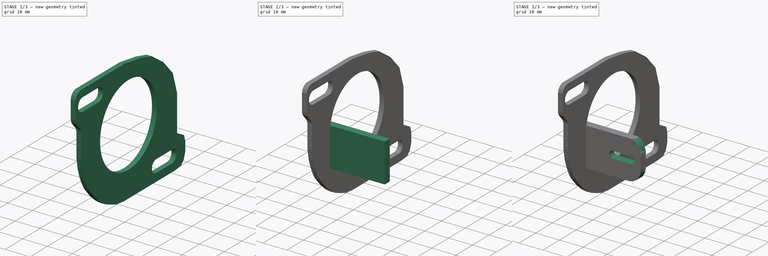
[diagram: build sequence overview — one tinted view per stage of 3, left to right]
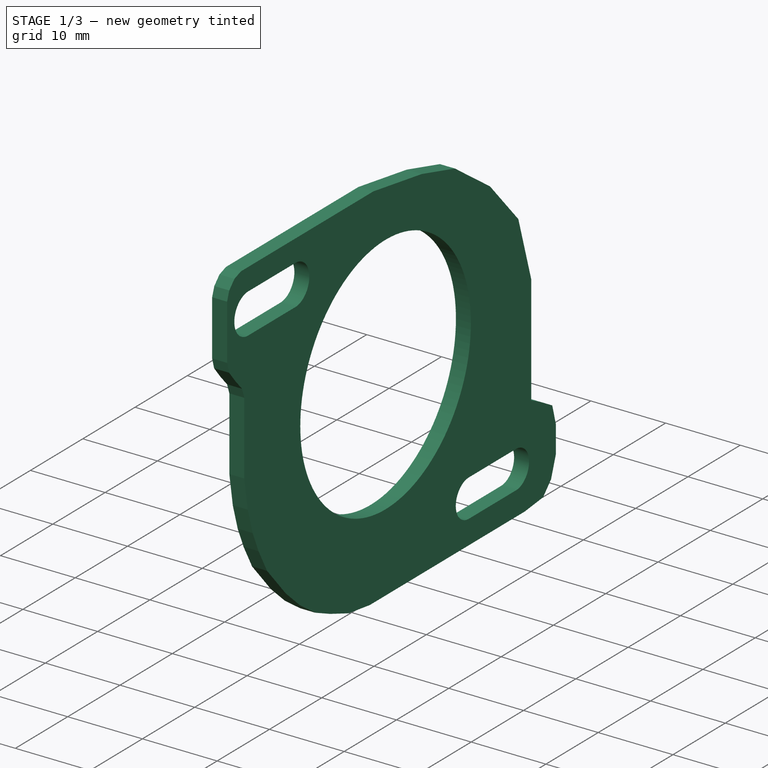
[diagram: stage 1 of 3 — iso view after this stage's code; geometry added in this stage tinted green]
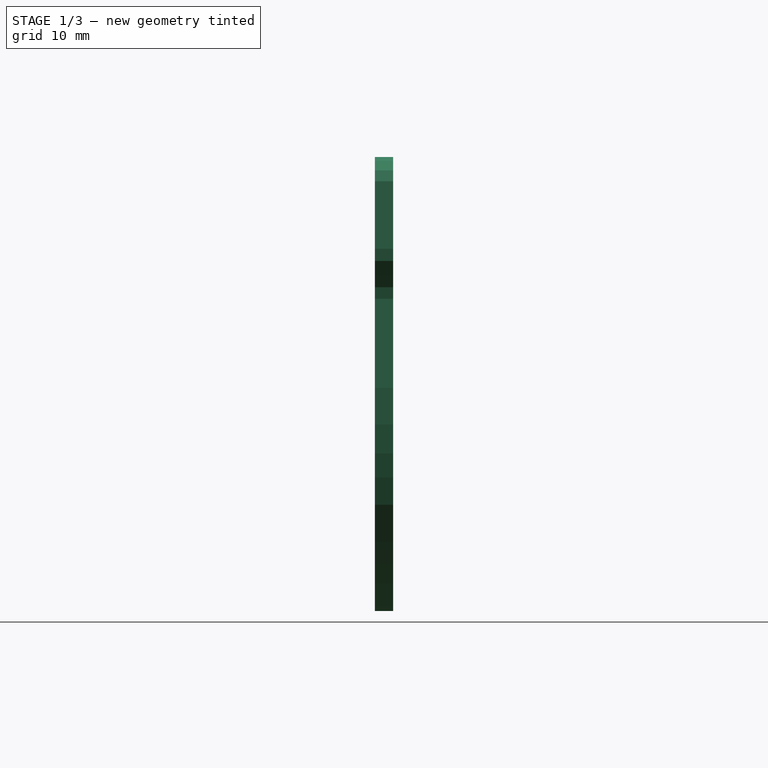
[diagram: stage 1 of 3 — front view after this stage's code; geometry added in this stage tinted green]
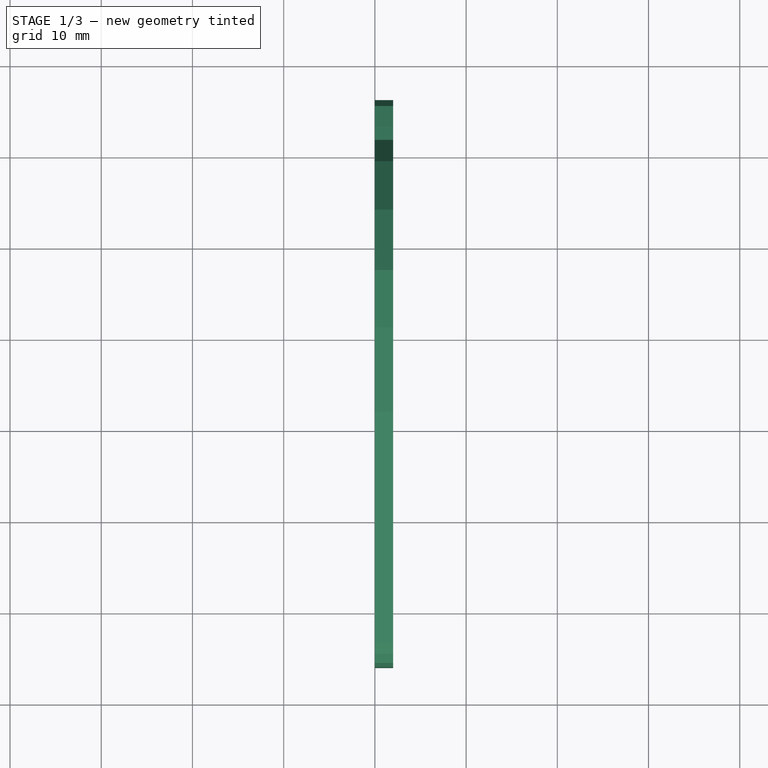
[diagram: stage 1 of 3 — top view after this stage's code; geometry added in this stage tinted green]
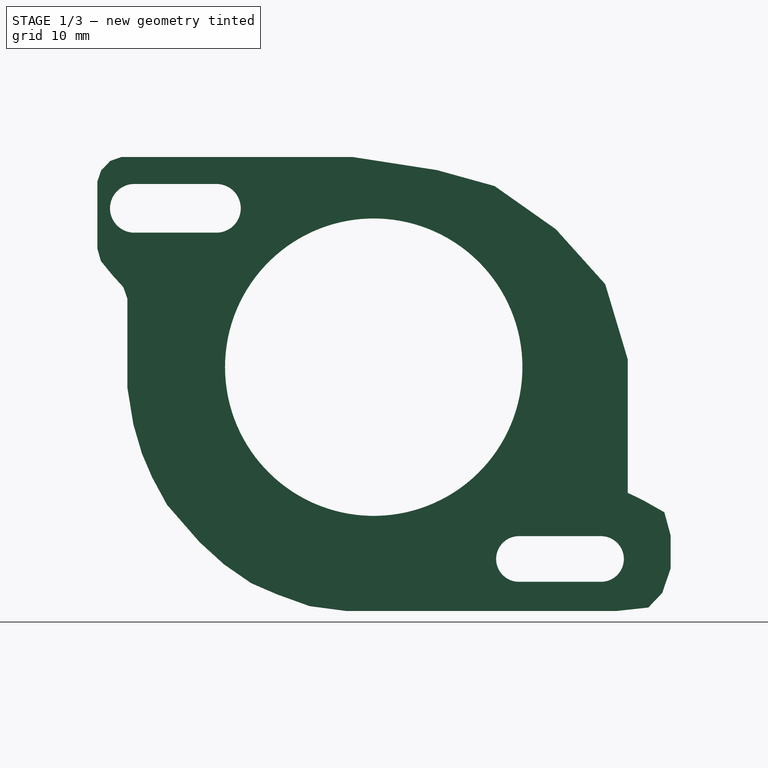
[diagram: stage 1 of 3 — right view after this stage's code; geometry added in this stage tinted green]
FCSTD DOCUMENT  (FreeCAD 0.16R6712 (Git))
Label: Fanholder
License: All rights reserved
LicenseURL: http://en.wikipedia.org/wiki/All_rights_reserved
objects: Sketcher::SketchObject×7, PartDesign::Pad×3, PartDesign::Pocket×2, Part::Feature×1
note: 18 computed .brp shape members not serialized (recipe doc carries the construction recipe); baked Part::Feature solids carry a one-line shape summary decoded from their .brp

FEATURE [Part::Feature] Pad014  label="Pad017"
  Placement = pos=(-40.9697,-68.7108,33.7326) rot=(0.575532,-0.575532,0.58097;2.08897rad)
  shape: bbox 17.36 x 56.39 x 54.19 mm, 272 faces (baked)
FEATURE [Sketcher::SketchObject] Sketch001  label="Holder Shape"
  Placement = pos=(0,0,0) rot=(0.57735,0.57735,0.57735;2.0944rad)
  sketch-geometry (46):
    g0: LineSegment StartX=-78.4321 StartY=57.5608 StartZ=0 EndX=-94.0285 EndY=57.5608 EndZ=0
    g1: LineSegment StartX=-94.0285 StartY=57.5608 StartZ=0 EndX=-95.2588 EndY=57.1247 EndZ=0
    g2: LineSegment StartX=-95.2588 StartY=57.1247 StartZ=0 EndX=-96.2523 EndY=56.0969 EndZ=0
    g3: LineSegment StartX=-96.2523 StartY=56.0969 StartZ=0 EndX=-96.6635 EndY=54.8978 EndZ=0
    g4: LineSegment StartX=-96.6635 StartY=54.8978 StartZ=0 EndX=-96.6635 EndY=52.4995 EndZ=0
    g5: LineSegment StartX=-96.6635 StartY=52.4995 StartZ=0 EndX=-96.6635 EndY=49.5188 EndZ=0
    g6: LineSegment StartX=-96.6635 StartY=49.5188 StartZ=0 EndX=-96.6635 EndY=47.4974 EndZ=0
    g7: LineSegment StartX=-96.6635 StartY=47.4974 StartZ=0 EndX=-96.2866 EndY=46.1612 EndZ=0
    g8: LineSegment StartX=-96.2866 StartY=46.1612 StartZ=0 EndX=-95.0875 EndY=44.688 EndZ=0
    g9: LineSegment StartX=-95.0875 StartY=44.688 StartZ=0 EndX=-93.8198 EndY=43.2833 EndZ=0
    g10: LineSegment StartX=-93.8198 StartY=43.2833 StartZ=0 EndX=-93.3744 EndY=42.0156 EndZ=0
    g11: LineSegment StartX=-93.3744 StartY=42.0156 StartZ=0 EndX=-93.3744 EndY=32.2512 EndZ=0
    g12: LineSegment StartX=-93.3744 StartY=32.2512 StartZ=0 EndX=-92.72 EndY=28.2352 EndZ=0
    g13: LineSegment StartX=-92.72 StartY=28.2352 StartZ=0 EndX=-91.7836 EndY=25.0514 EndZ=0
    g14: LineSegment StartX=-91.7836 StartY=25.0514 StartZ=0 EndX=-90.6599 EndY=22.4294 EndZ=0
    g15: LineSegment StartX=-90.6599 StartY=22.4294 StartZ=0 EndX=-89.0367 EndY=19.4329 EndZ=0
    g16: LineSegment StartX=-89.0367 StartY=19.4329 StartZ=0 EndX=-85.459 EndY=15.3324 EndZ=0
    g17: LineSegment StartX=-85.459 StartY=15.3324 StartZ=0 EndX=-82.7783 EndY=12.8929 EndZ=0
    g18: LineSegment StartX=-82.7783 StartY=12.8929 StartZ=0 EndX=-79.8046 EndY=10.8342 EndZ=0
    g19: LineSegment StartX=-79.8046 StartY=10.8342 StartZ=0 EndX=-76.9834 EndY=9.61419 EndZ=0
    g20: LineSegment StartX=-76.9834 StartY=9.61419 StartZ=0 EndX=-73.3997 EndY=8.31795 EndZ=0
    g21: LineSegment StartX=-73.3997 StartY=8.31795 StartZ=0 EndX=-69.3584 EndY=7.78421 EndZ=0
    g22: LineSegment StartX=-69.3584 StartY=7.78421 StartZ=0 EndX=-39.7737 EndY=7.78421 EndZ=0
    g23: LineSegment StartX=-39.7737 StartY=7.78421 StartZ=0 EndX=-36.2663 EndY=8.16545 EndZ=0
    g24: LineSegment StartX=-36.2663 StartY=8.16545 StartZ=0 EndX=-34.7413 EndY=9.76669 EndZ=0
    g25: LineSegment StartX=-34.7413 StartY=9.76669 StartZ=0 EndX=-33.8263 EndY=12.4354 EndZ=0
    g26: LineSegment StartX=-33.8263 StartY=12.4354 StartZ=0 EndX=-33.8263 EndY=16.0954 EndZ=0
    g27: LineSegment StartX=-33.8263 StartY=16.0954 StartZ=0 EndX=-34.5125 EndY=18.6116 EndZ=0
    g28: LineSegment StartX=-34.5125 StartY=18.6116 StartZ=0 EndX=-36.8 EndY=19.9078 EndZ=0
    g29: LineSegment StartX=-36.8 StartY=19.9078 StartZ=0 EndX=-38.5285 EndY=20.7466 EndZ=0
    g30: LineSegment StartX=-38.5285 StartY=20.7466 StartZ=0 EndX=-38.5285 EndY=35.3955 EndZ=0
    g31: LineSegment StartX=-38.5285 StartY=35.3955 StartZ=0 EndX=-40.9937 EndY=43.6214 EndZ=0
    g32: LineSegment StartX=-40.9937 StartY=43.6214 StartZ=0 EndX=-46.4074 EndY=49.6451 EndZ=0
    g33: LineSegment StartX=-46.4074 StartY=49.6451 StartZ=0 EndX=-53.1173 EndY=54.3725 EndZ=0
    g34: LineSegment StartX=-53.1173 StartY=54.3725 StartZ=0 EndX=-59.446 EndY=56.1263 EndZ=0
    g35: LineSegment StartX=-59.446 StartY=56.1263 StartZ=0 EndX=-68.703 EndY=57.5608 EndZ=0
    g36: LineSegment StartX=-68.703 StartY=57.5608 StartZ=0 EndX=-78.4321 EndY=57.5608 EndZ=0
    g37: ArcOfCircle CenterX=-92.6143 CenterY=51.9327 CenterZ=0 NormalX=0 NormalY=0 NormalZ=1 Radius=2.66872 StartAngle=1.5708 EndAngle=4.71239
    g38: ArcOfCircle CenterX=-83.6169 CenterY=51.9327 CenterZ=0 NormalX=0 NormalY=0 NormalZ=1 Radius=2.66872 StartAngle=4.71239 EndAngle=7.85398
    g39: LineSegment StartX=-92.6143 StartY=49.264 StartZ=0 EndX=-83.6169 EndY=49.264 EndZ=0
    g40: LineSegment StartX=-92.6143 StartY=54.6014 StartZ=0 EndX=-83.6169 EndY=54.6014 EndZ=0
    g41: ArcOfCircle CenterX=-41.4511 CenterY=13.4892 CenterZ=0 NormalX=0 NormalY=0 NormalZ=1 Radius=2.50236 StartAngle=4.71239 EndAngle=7.85398
    g42: LineSegment StartX=-50.4485 StartY=15.9916 StartZ=0 EndX=-41.4511 EndY=15.9916 EndZ=0
    g43: LineSegment StartX=-50.4485 StartY=10.9868 StartZ=0 EndX=-41.4511 EndY=10.9868 EndZ=0
    g44: ArcOfCircle CenterX=-50.4485 CenterY=13.4892 CenterZ=0 NormalX=0 NormalY=0 NormalZ=1 Radius=2.50236 StartAngle=1.5708 EndAngle=4.71239
    g45: Circle CenterX=-66.3708 CenterY=34.518 CenterZ=0 NormalX=0 NormalY=0 NormalZ=1 Radius=16.3025
  constraints (58):
    c: Horizontal(g0)
    c: Coincident(g0,g1)
    c: Coincident(g1,g2)
    c: Coincident(g2,g3)
    c: Coincident(g3,g4)
    c: Vertical(g4)
    c: Coincident(g4,g5)
    c: Vertical(g5)
    c: Coincident(g5,g6)
    c: Vertical(g6)
    c: Coincident(g6,g7)
    c: Coincident(g7,g8)
    c: Coincident(g8,g9)
    c: Coincident(g9,g10)
    c: Coincident(g10,g11)
    c: Vertical(g11)
    c: Coincident(g11,g12)
    c: Coincident(g12,g13)
    c: Coincident(g13,g14)
    c: Coincident(g14,g15)
    c: Coincident(g15,g16)
    c: Coincident(g16,g17)
    c: Coincident(g17,g18)
    c: Coincident(g18,g19)
    c: Coincident(g19,g20)
    c: Coincident(g20,g21)
    c: Coincident(g21,g22)
    c: Horizontal(g22)
    c: Coincident(g22,g23)
    c: Coincident(g23,g24)
    c: Coincident(g24,g25)
    c: Coincident(g25,g26)
    c: Vertical(g26)
    c: Coincident(g26,g27)
    c: Coincident(g27,g28)
    c: Coincident(g28,g29)
    c: Coincident(g29,g30)
    c: Vertical(g30)
    c: Coincident(g30,g31)
    c: Coincident(g31,g32)
    c: Coincident(g32,g33)
    c: Coincident(g33,g34)
    c: Coincident(g34,g35)
    c: Coincident(g35,g36)
    c: Coincident(g36,g0)
    c: Horizontal(g36)
    c: Tangent(g37,g40) = 1.5708
    c: Tangent(g37,g39) = -1.5708
    c: Tangent(g39,g38) = -1.5708
    c: Tangent(g40,g38) = 1.5708
    c: Horizontal(g39)
    c: Equal(g37,g38)
    c: Tangent(g44,g42) = 1.5708
    c: Tangent(g44,g43) = -1.5708
    c: Tangent(g43,g41) = -1.5708
    c: Tangent(g42,g41) = 1.5708
    c: Horizontal(g43)
    c: Equal(g44,g41)
FEATURE [PartDesign::Pad] Pad015  label="Pad018"
  Length = 2
  Length2 = 100
  Placement = pos=(0,0,0) rot=(0.57735,0.57735,0.57735;2.0944rad)
  Sketch = -> Sketch001
  Type = 0
FEATURE [Sketcher::SketchObject] Sketch002
  Placement = pos=(3,0,0) rot=(0.57735,0.57735,0.57735;2.0944rad)
  Support = -> Pad015 [Face48]
FEATURE [Sketcher::SketchObject] Sketch003  label="Hanger Shape"
  Placement = pos=(3,0,0) rot=(0.57735,0.57735,0.57735;2.0944rad)
  Support = -> Pad015 [Face48]
  sketch-geometry (4):
    g0: LineSegment StartX=-82.6582 StartY=37.4689 StartZ=0 EndX=-79.6582 EndY=37.4689 EndZ=0
    g1: LineSegment StartX=-79.6582 StartY=37.4689 StartZ=0 EndX=-79.6582 EndY=21.1516 EndZ=0
    g2: LineSegment StartX=-79.6582 StartY=21.1516 StartZ=0 EndX=-82.6582 EndY=21.1516 EndZ=0
    g3: LineSegment StartX=-82.6582 StartY=21.1516 StartZ=0 EndX=-82.6582 EndY=37.4689 EndZ=0
  constraints (9):
    c: Coincident(g0,g1)
    c: Coincident(g1,g2)
    c: Coincident(g2,g3)
    c: Coincident(g3,g0)
    c: Horizontal(g0)
    c: Horizontal(g2)
    c: Vertical(g1)
    c: Vertical(g3)
    c: DistanceX(g0,g0) = 3
FEATURE [PartDesign::Pad] Pad
  Length = 1
  Length2 = 100
  Placement = pos=(0,0,0) rot=(0.57735,0.57735,0.57735;2.0944rad)
  Sketch = -> Sketch003
  Type = 0
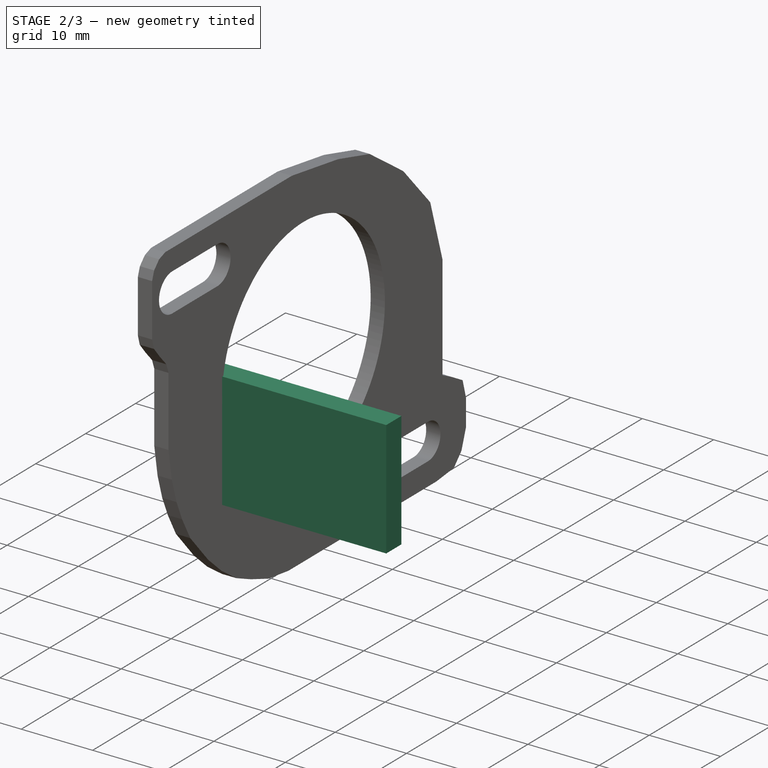
[diagram: stage 2 of 3 — iso view after this stage's code; geometry added in this stage tinted green]
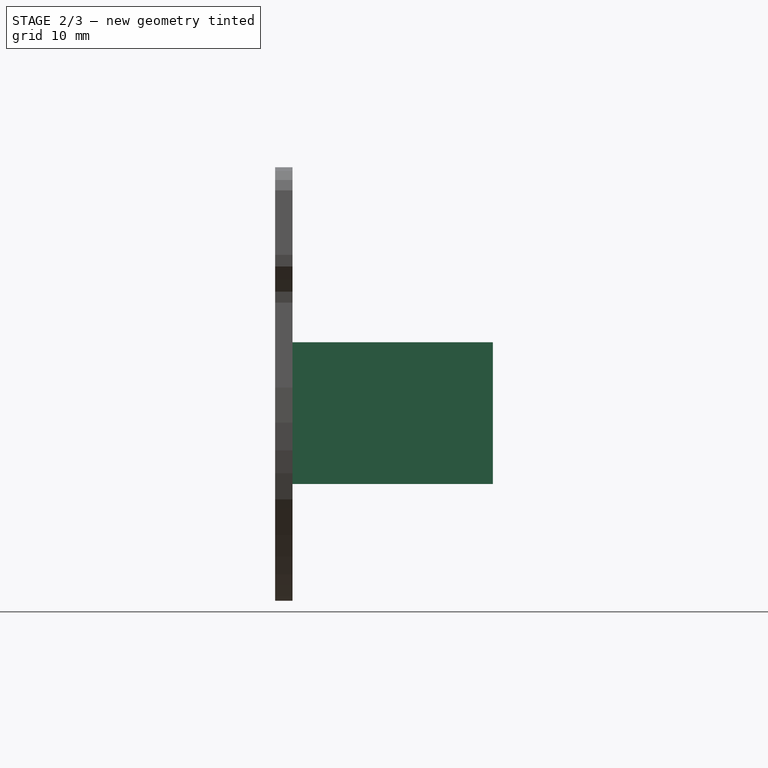
[diagram: stage 2 of 3 — front view after this stage's code; geometry added in this stage tinted green]
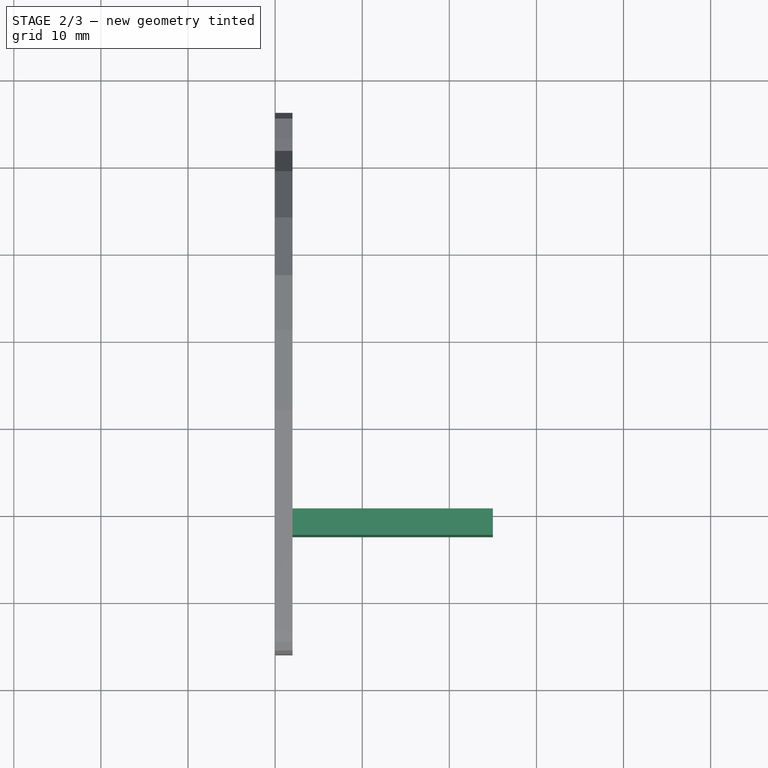
[diagram: stage 2 of 3 — top view after this stage's code; geometry added in this stage tinted green]
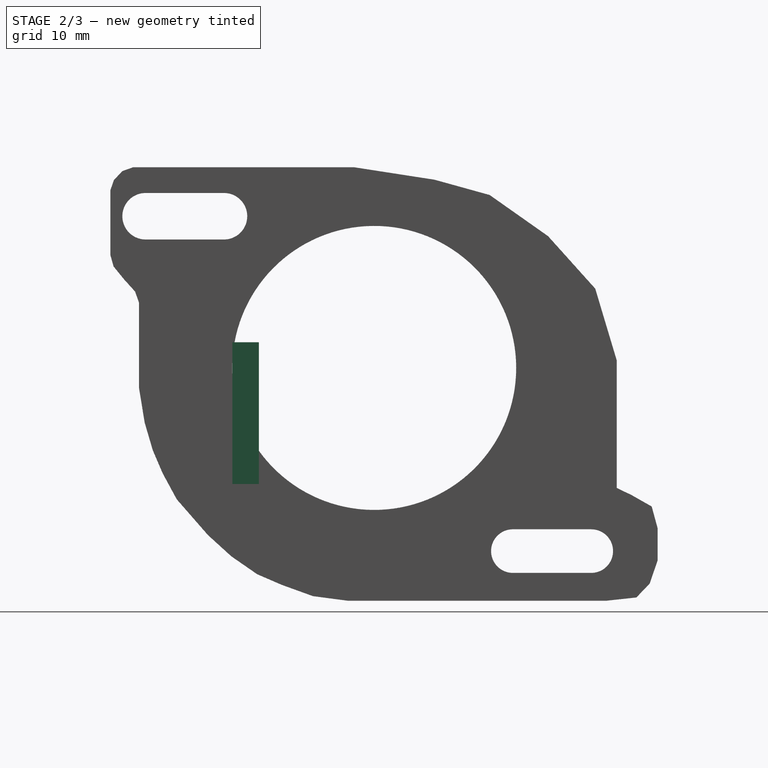
[diagram: stage 2 of 3 — right view after this stage's code; geometry added in this stage tinted green]
FEATURE [Sketcher::SketchObject] Sketch004
  Placement = pos=(0,0,0) rot=(0.57735,0.57735,-0.57735;4.18879rad)
  Support = -> Pad [Face4]
FEATURE [Sketcher::SketchObject] Sketch005
  Placement = pos=(0,0,0) rot=(0.57735,0.57735,-0.57735;4.18879rad)
  Support = -> Pad [Face4]
  sketch-geometry (4):
    g0: LineSegment StartX=-82.6451 StartY=-21.1957 StartZ=0 EndX=-79.6127 EndY=-21.1957 EndZ=0
    g1: LineSegment StartX=-79.6127 StartY=-21.1957 StartZ=0 EndX=-79.6127 EndY=-37.4613 EndZ=0
    g2: LineSegment StartX=-79.6127 StartY=-37.4613 StartZ=0 EndX=-82.6451 EndY=-37.4613 EndZ=0
    g3: LineSegment StartX=-82.6451 StartY=-37.4613 StartZ=0 EndX=-82.6451 EndY=-21.1957 EndZ=0
  constraints (8):
    c: Coincident(g0,g1)
    c: Coincident(g1,g2)
    c: Coincident(g2,g3)
    c: Coincident(g3,g0)
    c: Horizontal(g0)
    c: Horizontal(g2)
    c: Vertical(g1)
    c: Vertical(g3)
FEATURE [PartDesign::Pad] Pad016  label="Pad019"
  Length = 25
  Length2 = 100
  Placement = pos=(0,0,0) rot=(0.57735,0.57735,0.57735;2.0944rad)
  Reversed = true
  Sketch = -> Sketch005
  Type = 0
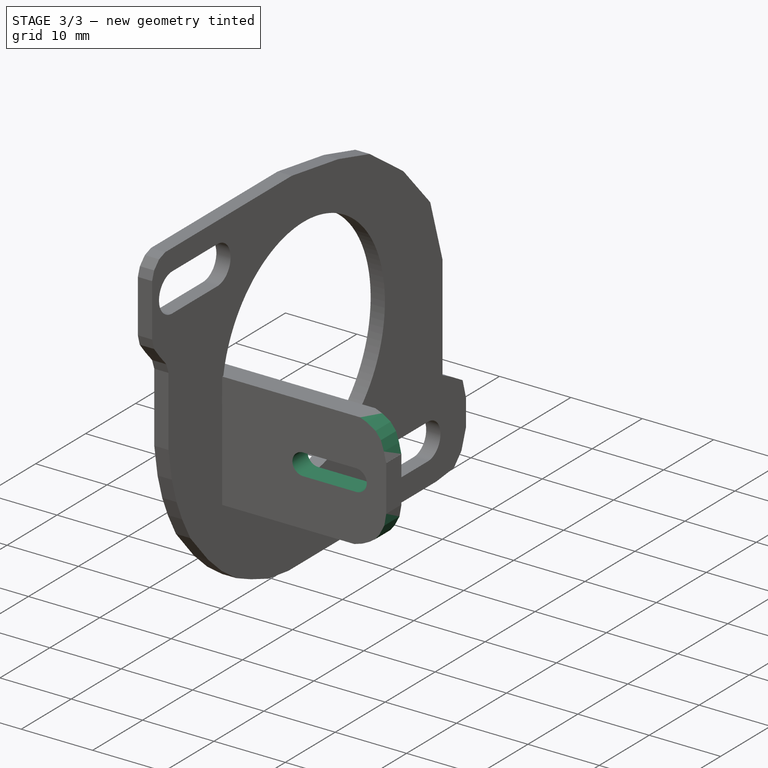
[diagram: stage 3 of 3 — iso view after this stage's code; geometry added in this stage tinted green]
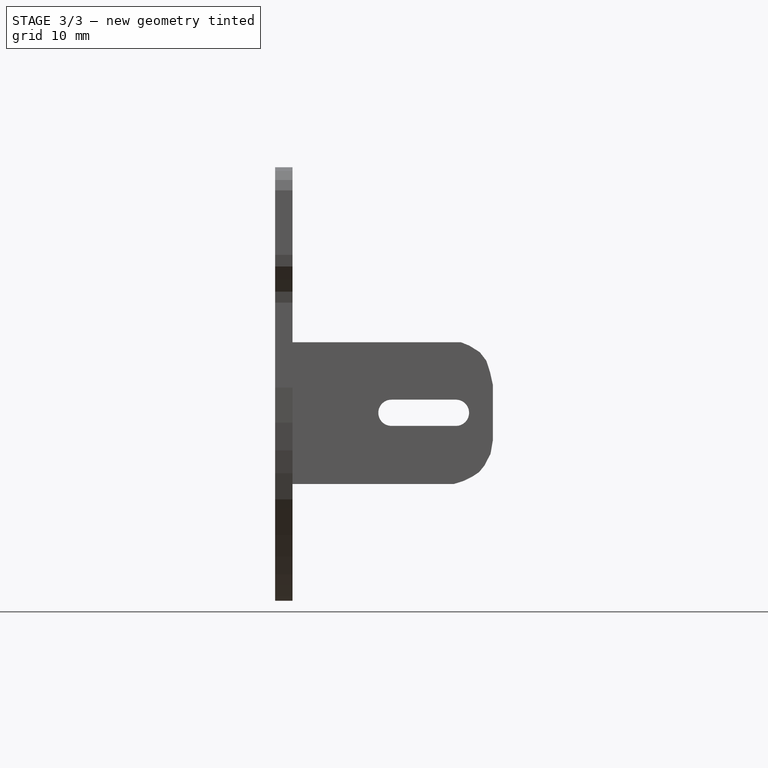
[diagram: stage 3 of 3 — front view after this stage's code; geometry added in this stage tinted green]
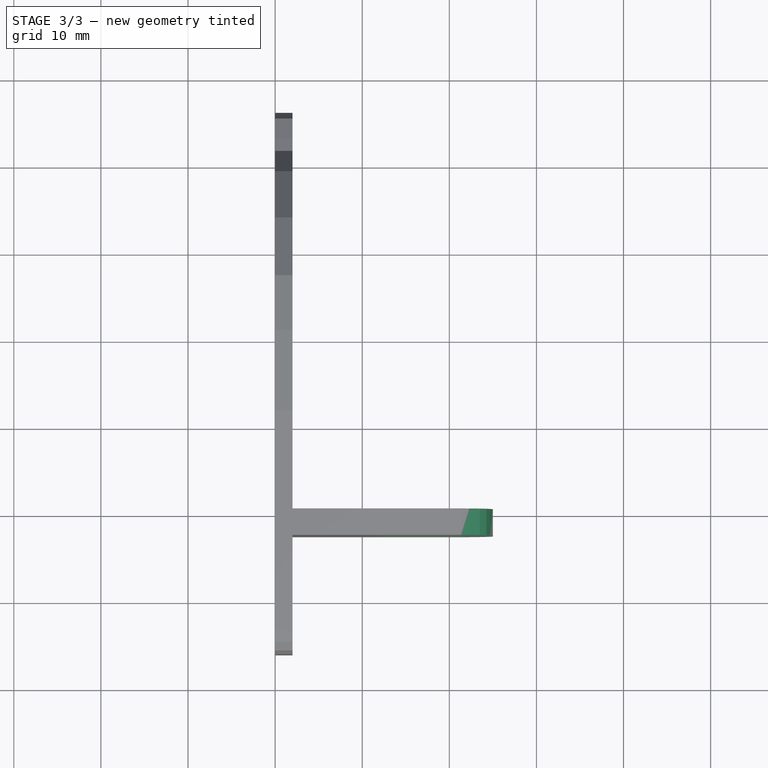
[diagram: stage 3 of 3 — top view after this stage's code; geometry added in this stage tinted green]
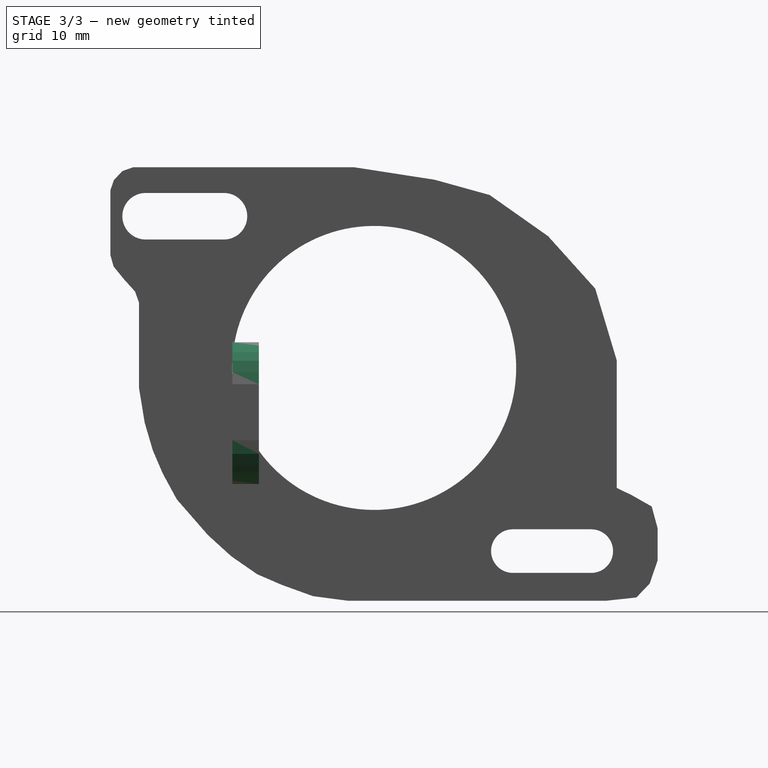
[diagram: stage 3 of 3 — right view after this stage's code; geometry added in this stage tinted green]
FEATURE [Sketcher::SketchObject] Sketch006
  Placement = pos=(0,-82.6451,0) rot=(-0.57735,-0.57735,0.57735;4.18879rad)
  Support = -> Pad016 [Face66]
  sketch-geometry (4):
    g0: ArcOfCircle CenterX=-29.3684 CenterY=20.7637 CenterZ=0 NormalX=0 NormalY=0 NormalZ=1 Radius=1.50348 StartAngle=0 EndAngle=3.14159
    g1: ArcOfCircle CenterX=-29.3684 CenterY=13.3511 CenterZ=0 NormalX=0 NormalY=0 NormalZ=1 Radius=1.50348 StartAngle=3.14159 EndAngle=6.28319
    g2: LineSegment StartX=-30.8718 StartY=20.7637 StartZ=0 EndX=-30.8718 EndY=13.3511 EndZ=0
    g3: LineSegment StartX=-27.8649 StartY=20.7637 StartZ=0 EndX=-27.8649 EndY=13.3511 EndZ=0
  constraints (6):
    c: Tangent(g0,g3) = 1.5708
    c: Tangent(g0,g2) = -1.5708
    c: Tangent(g2,g1) = -1.5708
    c: Tangent(g3,g1) = 1.5708
    c: Vertical(g2)
    c: Equal(g0,g1)
FEATURE [PartDesign::Pocket] Pocket
  Length = 5
  Placement = pos=(0,0,0) rot=(0.57735,0.57735,0.57735;2.0944rad)
  Sketch = -> Sketch006
  Type = 0
FEATURE [Sketcher::SketchObject] Sketch007
  Placement = pos=(0,-82.6451,0) rot=(-0.57735,-0.57735,0.57735;4.18879rad)
  Support = -> Pocket [Face49]
  sketch-geometry (18):
    g0: LineSegment StartX=-37.7836 StartY=25.6551 StartZ=0 EndX=-32.4259 EndY=25.6551 EndZ=0
    g1: LineSegment StartX=-32.4259 StartY=25.6551 StartZ=0 EndX=-32.6503 EndY=24.9819 EndZ=0
    g2: LineSegment StartX=-32.6503 StartY=24.9819 StartZ=0 EndX=-34.0248 EndY=24.6733 EndZ=0
    g3: LineSegment StartX=-34.0248 StartY=24.6733 StartZ=0 EndX=-35.3432 EndY=24.2526 EndZ=0
    g4: LineSegment StartX=-35.3432 StartY=24.2526 StartZ=0 EndX=-36.3249 EndY=23.4952 EndZ=0
    g5: LineSegment StartX=-36.3249 StartY=23.4952 StartZ=0 EndX=-37.0823 EndY=22.289 EndZ=0
    g6: LineSegment StartX=-37.0823 StartY=22.289 StartZ=0 EndX=-37.7836 EndY=20.5499 EndZ=0
    g7: LineSegment StartX=-37.7836 StartY=20.5499 StartZ=0 EndX=-37.7836 EndY=25.6551 EndZ=0
    g8: LineSegment StartX=-26.956 StartY=25.8234 StartZ=0 EndX=-27.5732 EndY=25.2343 EndZ=0
    g9: LineSegment StartX=-27.5732 StartY=25.2343 StartZ=0 EndX=-24.6559 EndY=24.7294 EndZ=0
    g10: LineSegment StartX=-24.6559 StartY=24.7294 StartZ=0 EndX=-23.3095 EndY=24.0282 EndZ=0
    g11: LineSegment StartX=-23.3095 StartY=24.0282 StartZ=0 EndX=-22.5802 EndY=23.4391 EndZ=0
    g12: LineSegment StartX=-22.5802 StartY=23.4391 StartZ=0 EndX=-22.0472 EndY=22.6537 EndZ=0
    g13: LineSegment StartX=-22.0472 StartY=22.6537 StartZ=0 EndX=-21.5423 EndY=21.6439 EndZ=0
    g14: LineSegment StartX=-21.5423 StartY=21.6439 StartZ=0 EndX=-21.1496 EndY=20.3816 EndZ=0
    g15: LineSegment StartX=-21.1496 StartY=20.3816 StartZ=0 EndX=-20.8971 EndY=20.3816 EndZ=0
    g16: LineSegment StartX=-20.8971 StartY=20.3816 StartZ=0 EndX=-20.8971 EndY=25.8234 EndZ=0
    g17: LineSegment StartX=-20.8971 StartY=25.8234 StartZ=0 EndX=-26.956 EndY=25.8234 EndZ=0
  constraints (23):
    c: Horizontal(g0)
    c: Coincident(g0,g1)
    c: Coincident(g1,g2)
    c: Coincident(g2,g3)
    c: Coincident(g3,g4)
    c: Coincident(g4,g5)
    c: Coincident(g5,g6)
    c: Coincident(g6,g7)
    c: Coincident(g7,g0)
    c: Vertical(g7)
    c: Coincident(g8,g9)
    c: Coincident(g9,g10)
    c: Coincident(g10,g11)
    c: Coincident(g11,g12)
    c: Coincident(g12,g13)
    c: Coincident(g13,g14)
    c: Coincident(g14,g15)
    c: Horizontal(g15)
    c: Coincident(g15,g16)
    c: Vertical(g16)
    c: Coincident(g16,g17)
    c: Horizontal(g17)
    c: Coincident(g8,g17)
FEATURE [PartDesign::Pocket] Pocket011
  Length = 5
  Placement = pos=(0,0,0) rot=(0.57735,0.57735,0.57735;2.0944rad)
  Sketch = -> Sketch007
  Type = 0
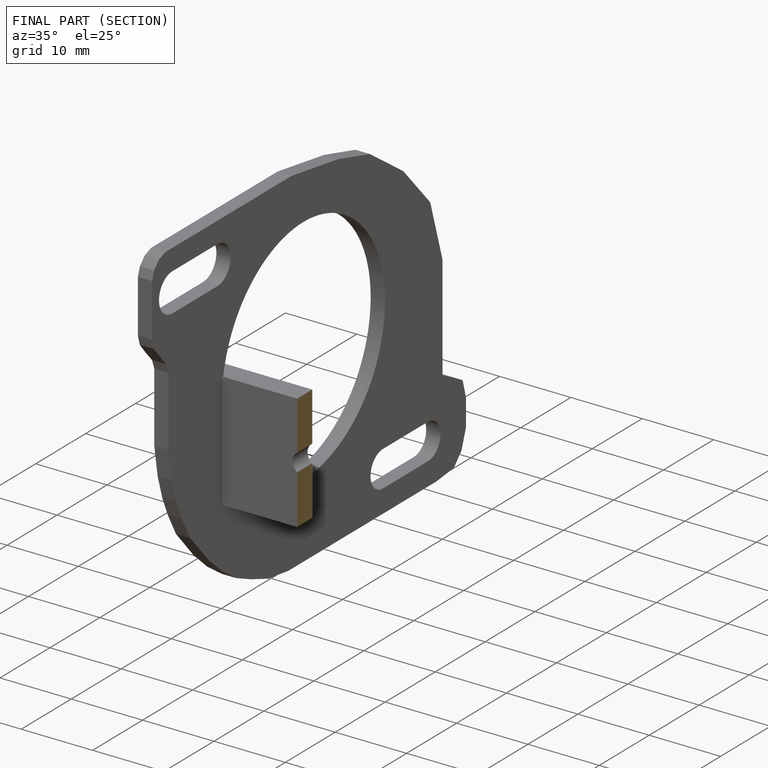
[diagram: finished part — half-section view (interior)]
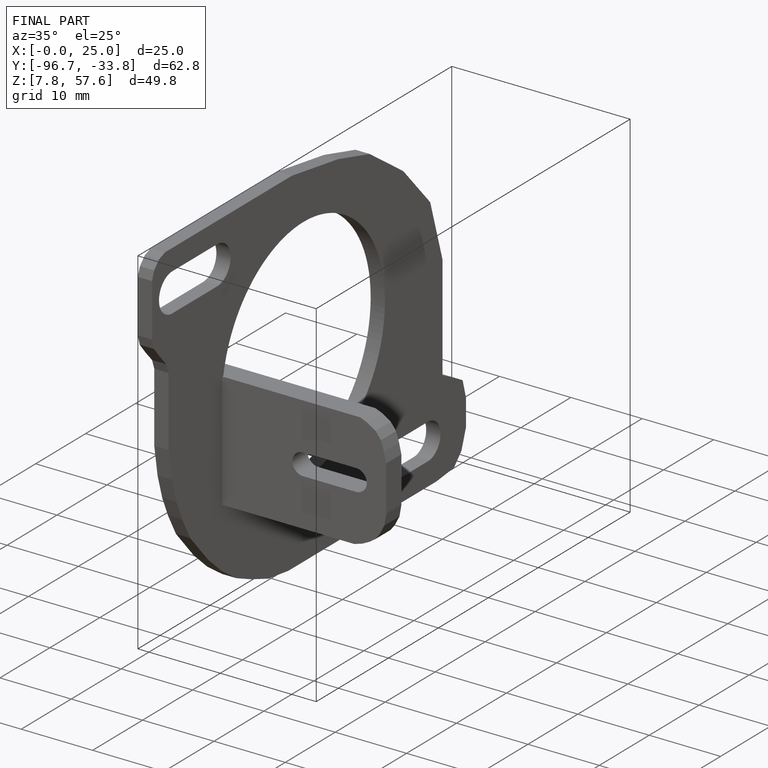
[diagram: finished part — iso view with bounding-box wireframe]
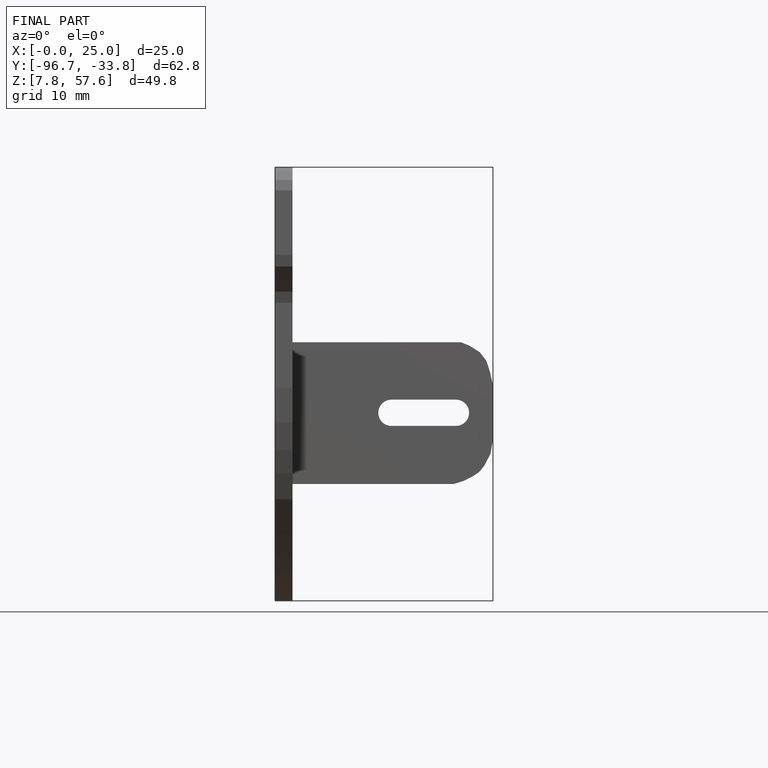
[diagram: finished part — front view with bounding-box wireframe]
